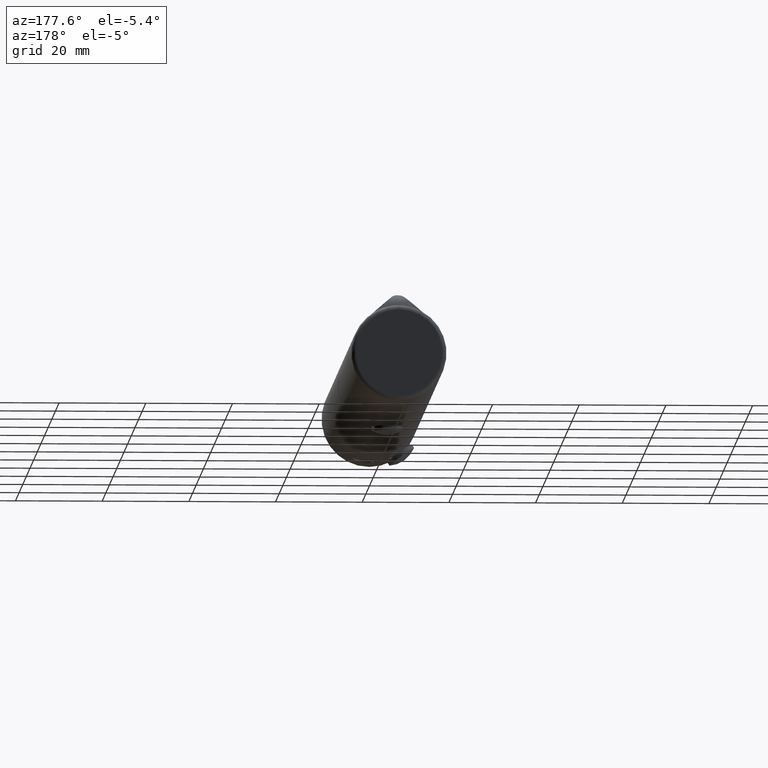
[diagram: clean part render]
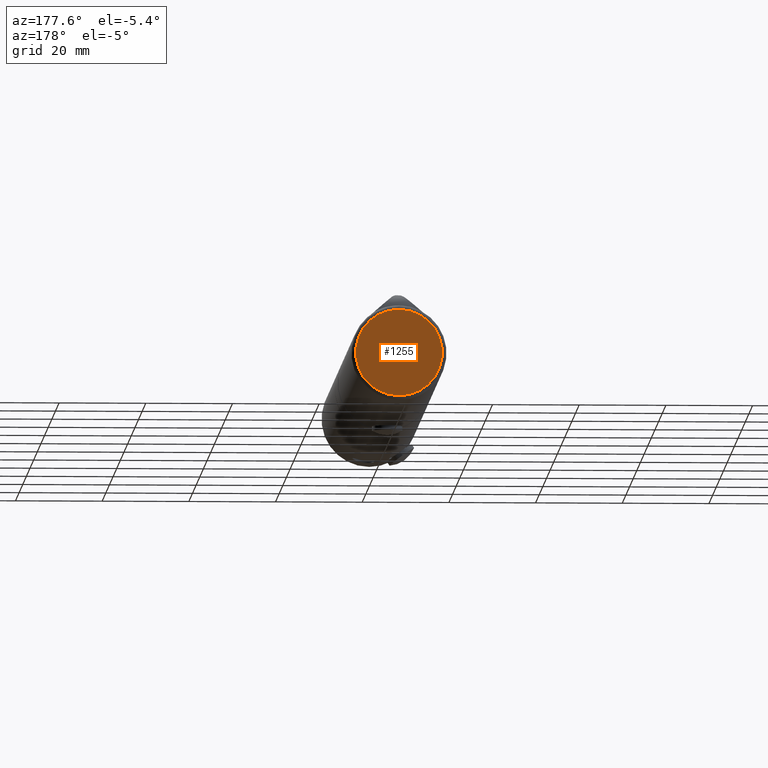
[diagram: same view with one face highlighted and labeled with its STEP entity id]
A machine part, auxiliary view. The second image highlights one B-rep face of the part: STEP entity #1255.
In plain terms, the highlighted planar face has unit normal (0, -1, 0).
Its self-contained STEP definition (entity closure, byte-faithful):
#1255 = ADVANCED_FACE ( 'NONE', ( #4468 ), #14329, .F. ) ;
#4243 = DIRECTION ( 'NONE',  ( 2.465190328815638245E-31, 0.000000000000000000, 1.000000000000000000 ) ) ;
#4313 = DIRECTION ( 'NONE',  ( 2.465190328815639121E-31, 0.000000000000000000, 1.000000000000000000 ) ) ;
#4468 = FACE_OUTER_BOUND ( 'NONE', #13446, .T. ) ;
#5458 = DIRECTION ( 'NONE',  ( -0.000000000000000000, 1.000000000000000000, 0.000000000000000000 ) ) ;
#5477 = ORIENTED_EDGE ( 'NONE', *, *, #7103, .T. ) ;
#5542 = CARTESIAN_POINT ( 'NONE',  ( 0.000000000000000000, -37.49999999999997868, 0.000000000000000000 ) ) ;
#5842 = CARTESIAN_POINT ( 'NONE',  ( 2.465190328815661191E-30, -37.49999999999997868, 10.00000000000009237 ) ) ;
#6478 = AXIS2_PLACEMENT_3D ( 'NONE', #11838, #5458, #4313 ) ;
#7103 = EDGE_CURVE ( 'NONE', #8361, #8361, #16240, .T. ) ;
#7894 = DIRECTION ( 'NONE',  ( 0.000000000000000000, -1.000000000000000000, -0.000000000000000000 ) ) ;
#8361 = VERTEX_POINT ( 'NONE', #5842 ) ;
#8861 = AXIS2_PLACEMENT_3D ( 'NONE', #5542, #7894, #4243 ) ;
#11838 = CARTESIAN_POINT ( 'NONE',  ( 0.02500000000000151060, -37.49999999999997868, 12.00000000000014921 ) ) ;
#13446 = EDGE_LOOP ( 'NONE', ( #5477 ) ) ;
#14329 = PLANE ( 'NONE',  #6478 ) ;
#16240 = CIRCLE ( 'NONE', #8861, 10.00000000000009237 ) ;